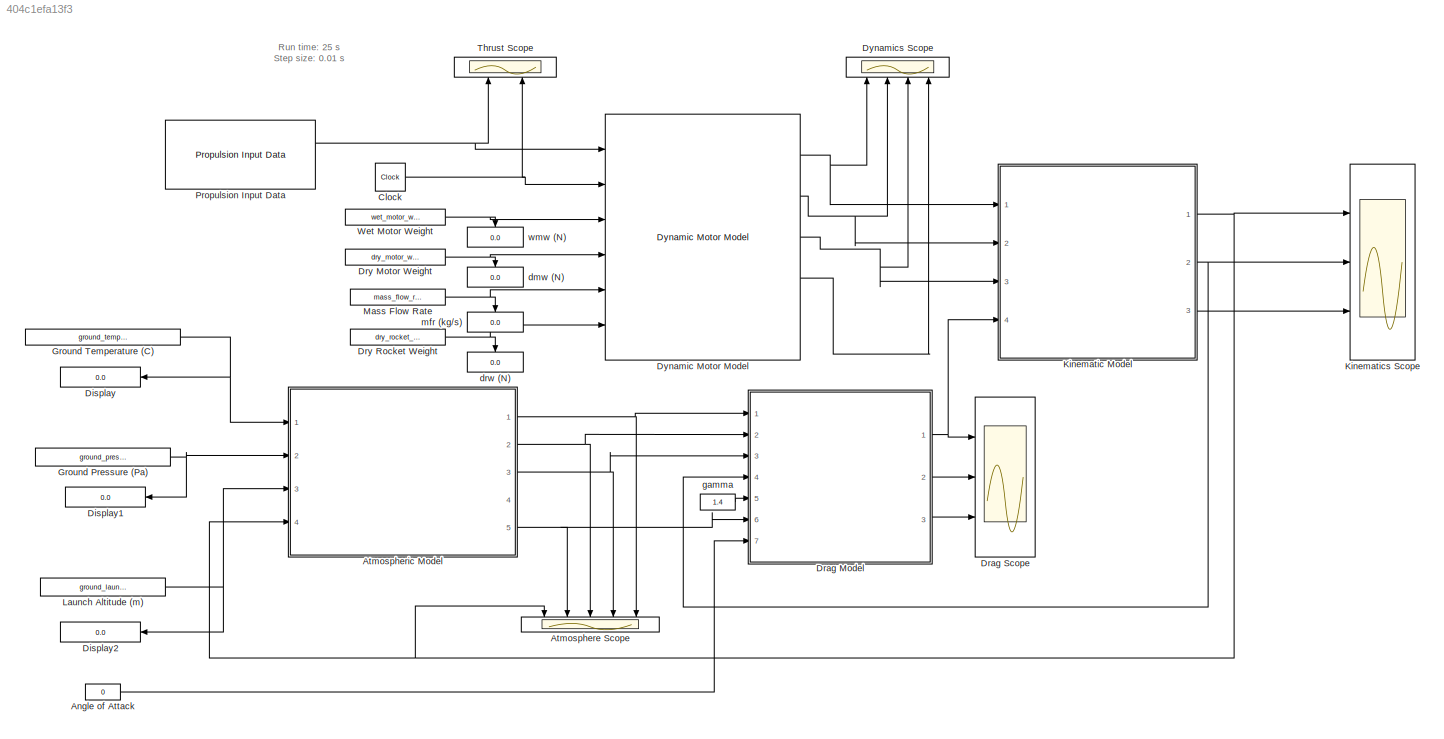
MODEL slx_404c1efa13f3
KIND model
CONFIG AbsTol = auto
CONFIG FixedStep = 0.01
CONFIG MaxStep = auto
CONFIG MinStep = 0.01
CONFIG RelTol = 1e-3
CONFIG SampleTimeConstraint = Unconstrained
CONFIG Solver = ode3
CONFIG SolverMode = Auto
CONFIG SolverName = ode3
CONFIG StartTime = 0.0
CONFIG StopTime = 25
BLOCK [Constant] Angle of Attack
  Value = 0
BLOCK [Scope] Atmosphere Scope
  DataFormat = StructureWithTime
  Floating = off
  NumInputPorts = 5
  Ports = [5]
  SampleTime = 0
  SaveName = ScopeData4
  ShowLegends = off
  YMax = 1~31.5~106391~12.355~-1.01773e-07
  YMin = -1~28.5~96258.8~11.1784~-1.12485e-07
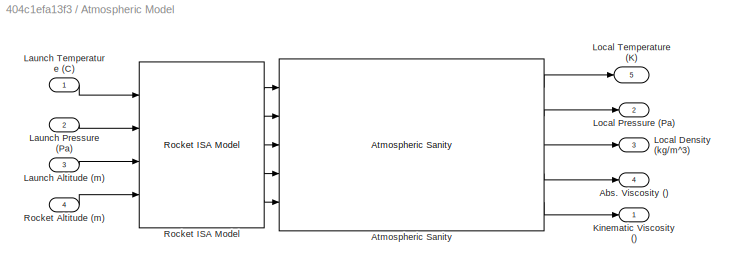
BLOCK [SubSystem] Atmospheric Model
  Ports = [4, 5]
  RequestExecContextInheritance = off
BLOCK [Outport] Atmospheric Model/Abs. Viscosity ()
  IconDisplay = Port number
  Port = 4
BLOCK [Reference] Atmospheric Model/Atmospheric Sanity  REF=rocket_isa_model_library/Atmospheric Sanity  (lib defined in slx_4b2a796e4351)
  Ports = [5, 5]
  SourceBlock = rocket_isa_model_library/Atmospheric Sanity
  SourceType = SubSystem
BLOCK [Outport] Atmospheric Model/Kinematic Viscosity ()
  IconDisplay = Port number
BLOCK [Inport] Atmospheric Model/Launch Altitude (m)
  IconDisplay = Port number
  Port = 3
BLOCK [Inport] Atmospheric Model/Launch Pressure (Pa)
  IconDisplay = Port number
  Port = 2
BLOCK [Inport] Atmospheric Model/Launch Temperature (C)
  IconDisplay = Port number
BLOCK [Outport] Atmospheric Model/Local Density (kg//m^3)
  IconDisplay = Port number
  Port = 3
BLOCK [Outport] Atmospheric Model/Local Pressure (Pa)
  IconDisplay = Port number
  Port = 2
BLOCK [Outport] Atmospheric Model/Local Temperature (K)
  IconDisplay = Port number
  Port = 5
BLOCK [Inport] Atmospheric Model/Rocket Altitude (m)
  IconDisplay = Port number
  Port = 4
BLOCK [Reference] Atmospheric Model/Rocket ISA Model  REF=rocket_isa_model_library/Rocket ISA Model  (lib defined in slx_4b2a796e4351)
  Ports = [4, 5]
  SourceBlock = rocket_isa_model_library/Rocket ISA Model
  SourceType = SubSystem
BLOCK [Clock] Clock
  DisplayTime = on
BLOCK [Display] Display
  Decimation = 1
  Ports = [1]
BLOCK [Display] Display1
  Decimation = 1
  Ports = [1]
BLOCK [Display] Display2
  Decimation = 1
  Ports = [1]
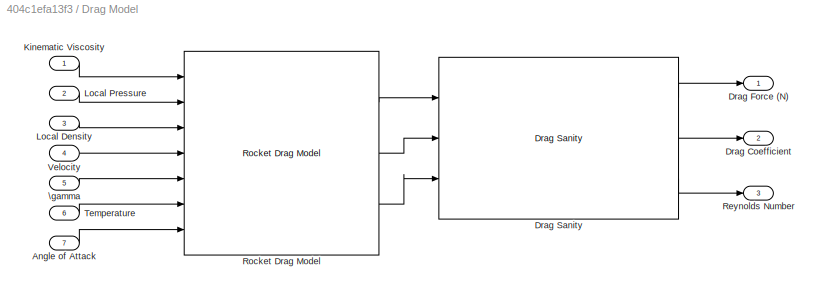
BLOCK [SubSystem] Drag Model
  Ports = [7, 3]
  RequestExecContextInheritance = off
BLOCK [Inport] Drag Model/Angle of Attack
  IconDisplay = Port number
  Port = 7
BLOCK [Outport] Drag Model/Drag Coefficient
  IconDisplay = Port number
  Port = 2
BLOCK [Outport] Drag Model/Drag Force (N)
  IconDisplay = Port number
BLOCK [Reference] Drag Model/Drag Sanity  REF=rocket_drag_library/Drag Sanity  (lib defined in slx_51275aa4cfd2)
  Ports = [3, 3]
  SourceBlock = rocket_drag_library/Drag Sanity
  SourceType = SubSystem
BLOCK [Inport] Drag Model/Kinematic Viscosity
  IconDisplay = Port number
BLOCK [Inport] Drag Model/Local Density
  IconDisplay = Port number
  Port = 3
BLOCK [Inport] Drag Model/Local Pressure
  IconDisplay = Port number
  Port = 2
BLOCK [Outport] Drag Model/Reynolds Number
  IconDisplay = Port number
  Port = 3
BLOCK [Reference] Drag Model/Rocket Drag Model  REF=rocket_drag_library/Rocket Drag Model  (lib defined in slx_51275aa4cfd2)
  Ports = [7, 3]
  SourceBlock = rocket_drag_library/Rocket Drag Model
  SourceType = SubSystem
BLOCK [Inport] Drag Model/Temperature
  IconDisplay = Port number
  Port = 6
BLOCK [Inport] Drag Model/Velocity
  IconDisplay = Port number
  Port = 4
BLOCK [Inport] Drag Model/\gamma
  IconDisplay = Port number
  Port = 5
BLOCK [Scope] Drag Scope
  DataFormat = StructureWithTime
  Floating = off
  NumInputPorts = 3
  Ports = [3]
  SampleTime = 0
  SaveName = ScopeData3
  ShowLegends = off
  YMax = 5~5~5
  YMin = -5~-5~-5
BLOCK [Constant] Dry Motor Weight
  Value = dry_motor_weight
BLOCK [Constant] Dry Rocket Weight
  Value = dry_rocket_weight
BLOCK [Reference] Dynamic Motor Model  REF=rocket_dynamic_data_library/Dynamic Motor Model  (lib defined in slx_58be5b8ac4f4)
  Ports = [6, 5]
  SourceBlock = rocket_dynamic_data_library/Dynamic Motor Model
  SourceType = SubSystem
BLOCK [Scope] Dynamics Scope
  DataFormat = StructureWithTime
  Floating = off
  NumInputPorts = 4
  Ports = [4]
  SampleTime = 0
  SaveName = ScopeData1
  ShowLegends = off
  YMax = 139.531~1368.8~856.01~5
  YMin = 126.243~1238.44~774.486~-5
BLOCK [Constant] Ground Pressure (Pa)
  Value = ground_pressure_ambient
BLOCK [Constant] Ground Temperature (C)
  Value = ground_temperature_ambient
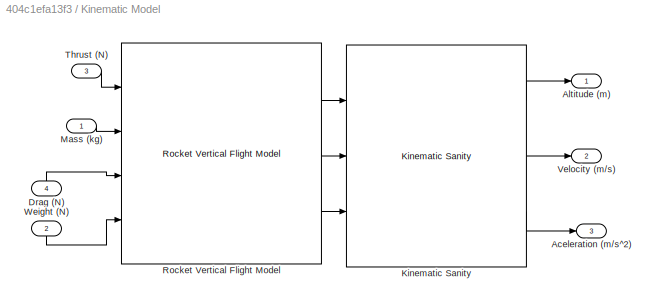
BLOCK [SubSystem] Kinematic Model
  Ports = [4, 3]
  RequestExecContextInheritance = off
BLOCK [Outport] Kinematic Model/Aceleration (m//s^2)
  IconDisplay = Port number
  Port = 3
BLOCK [Outport] Kinematic Model/Altitude (m)
  IconDisplay = Port number
BLOCK [Inport] Kinematic Model/Drag (N)
  IconDisplay = Port number
  Port = 4
BLOCK [Reference] Kinematic Model/Kinematic Sanity  REF=rocket_vertical_flight_library/Kinematic Sanity  (lib defined in slx_f0a917acac91)
  Ports = [3, 3]
  SourceBlock = rocket_vertical_flight_library/Kinematic Sanity
  SourceType = SubSystem
BLOCK [Inport] Kinematic Model/Mass (kg)
  IconDisplay = Port number
BLOCK [Reference] Kinematic Model/Rocket Vertical Flight Model  REF=rocket_vertical_flight_library/Rocket Vertical Flight Model  (lib defined in slx_f0a917acac91)
  Ports = [4, 3]
  SourceBlock = rocket_vertical_flight_library/Rocket Vertical Flight Model
  SourceType = SubSystem
BLOCK [Inport] Kinematic Model/Thrust (N)
  IconDisplay = Port number
  Port = 3
BLOCK [Outport] Kinematic Model/Velocity (m//s)
  IconDisplay = Port number
  Port = 2
BLOCK [Inport] Kinematic Model/Weight (N)
  IconDisplay = Port number
  Port = 2
BLOCK [Scope] Kinematics Scope
  DataFormat = StructureWithTime
  Floating = off
  NumInputPorts = 3
  Ports = [3]
  SampleTime = 0
  ShowLegends = off
  YMax = 600~150~110
  YMin = 0~-100~-80
BLOCK [Constant] Launch Altitude (m)
  Value = ground_launch_altitude
BLOCK [Constant] Mass Flow Rate
  Value = mass_flow_rate
BLOCK [Reference] Propulsion Input Data  REF=rocket_dynamic_data_library/Propulsion Input Data  (lib defined in slx_58be5b8ac4f4)
  Ports = [0, 2]
  SourceBlock = rocket_dynamic_data_library/Propulsion Input Data
  SourceType = SubSystem
BLOCK [Scope] Thrust Scope
  DataFormat = StructureWithTime
  Floating = off
  NumInputPorts = 2
  Ports = [2]
  SampleTime = 0
  SaveName = ScopeData2
  ShowLegends = off
  YMax = 139.531~1368.8
  YMin = 126.243~1238.44
BLOCK [Constant] Wet Motor Weight
  Value = wet_motor_weight
BLOCK [Display] dmw (N)
  Decimation = 1
  Ports = [1]
BLOCK [Display] drw (N)
  Decimation = 1
  Ports = [1]
BLOCK [Constant] gamma
  Value = 1.4
BLOCK [Display] mfr (kg//s)
  Decimation = 1
  Ports = [1]
BLOCK [Display] wmw (N)
  Decimation = 1
  Ports = [1]
ANNOTATION (root): Run time: 25 s Step size: 0.01 s
LINE Angle of Attack:1 -> Drag Model:7
LINE Atmospheric Model/Atmospheric Sanity:1 -> Atmospheric Model/Local Temperature (K):1
LINE Atmospheric Model/Atmospheric Sanity:2 -> Atmospheric Model/Local Pressure (Pa):1
LINE Atmospheric Model/Atmospheric Sanity:3 -> Atmospheric Model/Local Density (kg//m^3):1
LINE Atmospheric Model/Atmospheric Sanity:4 -> Atmospheric Model/Abs. Viscosity ():1
LINE Atmospheric Model/Atmospheric Sanity:5 -> Atmospheric Model/Kinematic Viscosity ():1
LINE Atmospheric Model/Launch Altitude (m):1 -> Atmospheric Model/Rocket ISA Model:3
LINE Atmospheric Model/Launch Pressure (Pa):1 -> Atmospheric Model/Rocket ISA Model:2
LINE Atmospheric Model/Launch Temperature (C):1 -> Atmospheric Model/Rocket ISA Model:1
LINE Atmospheric Model/Rocket Altitude (m):1 -> Atmospheric Model/Rocket ISA Model:4
LINE Atmospheric Model/Rocket ISA Model:1 -> Atmospheric Model/Atmospheric Sanity:1
LINE Atmospheric Model/Rocket ISA Model:2 -> Atmospheric Model/Atmospheric Sanity:2
LINE Atmospheric Model/Rocket ISA Model:3 -> Atmospheric Model/Atmospheric Sanity:3
LINE Atmospheric Model/Rocket ISA Model:4 -> Atmospheric Model/Atmospheric Sanity:4
LINE Atmospheric Model/Rocket ISA Model:5 -> Atmospheric Model/Atmospheric Sanity:5
NET Atmospheric Model:1 -> Atmosphere Scope:5, Drag Model:1
NET Atmospheric Model:2 -> Atmosphere Scope:3, Drag Model:2
NET Atmospheric Model:3 -> Atmosphere Scope:4, Drag Model:3
NET Atmospheric Model:5 -> Atmosphere Scope:2, Drag Model:6
NET Clock:1 -> Dynamic Motor Model:2, Thrust Scope:2
LINE Drag Model/Angle of Attack:1 -> Drag Model/Rocket Drag Model:7
LINE Drag Model/Drag Sanity:1 -> Drag Model/Drag Force (N):1
LINE Drag Model/Drag Sanity:2 -> Drag Model/Drag Coefficient:1
LINE Drag Model/Drag Sanity:3 -> Drag Model/Reynolds Number:1
LINE Drag Model/Kinematic Viscosity:1 -> Drag Model/Rocket Drag Model:1
LINE Drag Model/Local Density:1 -> Drag Model/Rocket Drag Model:3
LINE Drag Model/Local Pressure:1 -> Drag Model/Rocket Drag Model:2
LINE Drag Model/Rocket Drag Model:1 -> Drag Model/Drag Sanity:1
LINE Drag Model/Rocket Drag Model:2 -> Drag Model/Drag Sanity:2
LINE Drag Model/Rocket Drag Model:3 -> Drag Model/Drag Sanity:3
LINE Drag Model/Temperature:1 -> Drag Model/Rocket Drag Model:6
LINE Drag Model/Velocity:1 -> Drag Model/Rocket Drag Model:4
LINE Drag Model/\gamma:1 -> Drag Model/Rocket Drag Model:5
NET Drag Model:1 -> Drag Scope:1, Kinematic Model:4
LINE Drag Model:2 -> Drag Scope:2
LINE Drag Model:3 -> Drag Scope:3
NET Dry Motor Weight:1 -> Dynamic Motor Model:4, dmw (N):1
NET Dry Rocket Weight:1 -> Dynamic Motor Model:6, drw (N):1
NET Dynamic Motor Model:1 -> Dynamics Scope:1, Kinematic Model:1
NET Dynamic Motor Model:2 -> Dynamics Scope:2, Kinematic Model:2
NET Dynamic Motor Model:3 -> Dynamics Scope:3, Kinematic Model:3
LINE Dynamic Motor Model:4 -> Dynamics Scope:4
NET Ground Pressure (Pa):1 -> Atmospheric Model:2, Display1:1
NET Ground Temperature (C):1 -> Atmospheric Model:1, Display:1
LINE Kinematic Model/Drag (N):1 -> Kinematic Model/Rocket Vertical Flight Model:3
LINE Kinematic Model/Kinematic Sanity:1 -> Kinematic Model/Altitude (m):1
LINE Kinematic Model/Kinematic Sanity:2 -> Kinematic Model/Velocity (m//s):1
LINE Kinematic Model/Kinematic Sanity:3 -> Kinematic Model/Aceleration (m//s^2):1
LINE Kinematic Model/Mass (kg):1 -> Kinematic Model/Rocket Vertical Flight Model:2
LINE Kinematic Model/Rocket Vertical Flight Model:1 -> Kinematic Model/Kinematic Sanity:1
LINE Kinematic Model/Rocket Vertical Flight Model:2 -> Kinematic Model/Kinematic Sanity:2
LINE Kinematic Model/Rocket Vertical Flight Model:3 -> Kinematic Model/Kinematic Sanity:3
LINE Kinematic Model/Thrust (N):1 -> Kinematic Model/Rocket Vertical Flight Model:1
LINE Kinematic Model/Weight (N):1 -> Kinematic Model/Rocket Vertical Flight Model:4
NET Kinematic Model:1 -> Atmosphere Scope:1, Atmospheric Model:4, Kinematics Scope:1
NET Kinematic Model:2 -> Drag Model:4, Kinematics Scope:2
LINE Kinematic Model:3 -> Kinematics Scope:3
NET Launch Altitude (m):1 -> Atmospheric Model:3, Display2:1
NET Mass Flow Rate:1 -> Dynamic Motor Model:5, mfr (kg//s):1
NET Propulsion Input Data:1 -> Dynamic Motor Model:1, Thrust Scope:1
NET Wet Motor Weight:1 -> Dynamic Motor Model:3, wmw (N):1
LINE gamma:1 -> Drag Model:5
note: NET lines group one-source signal fan-out (src -> all destinations, sorted); 1:1 wires keep LINE
